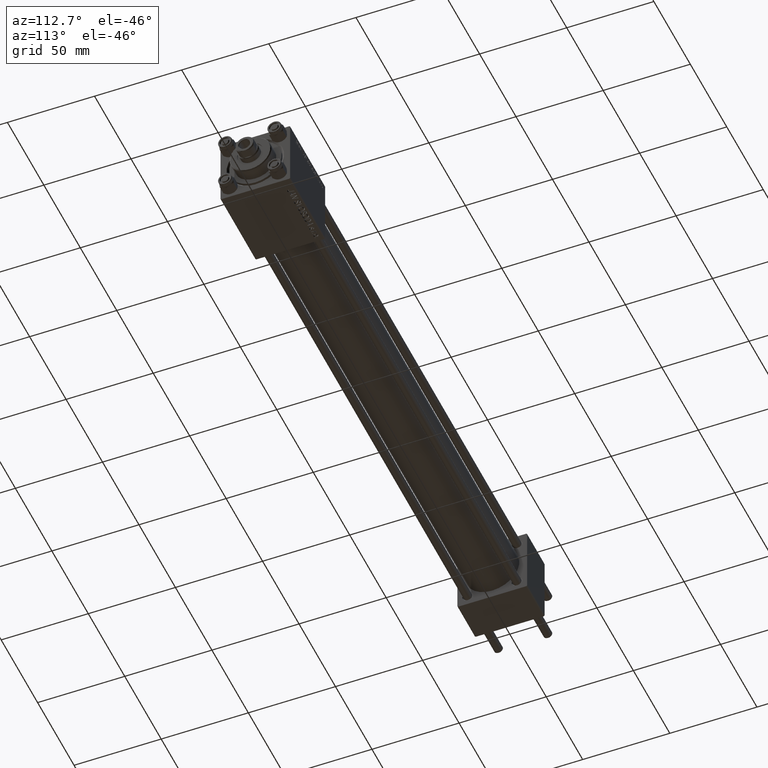
[diagram: clean part render]
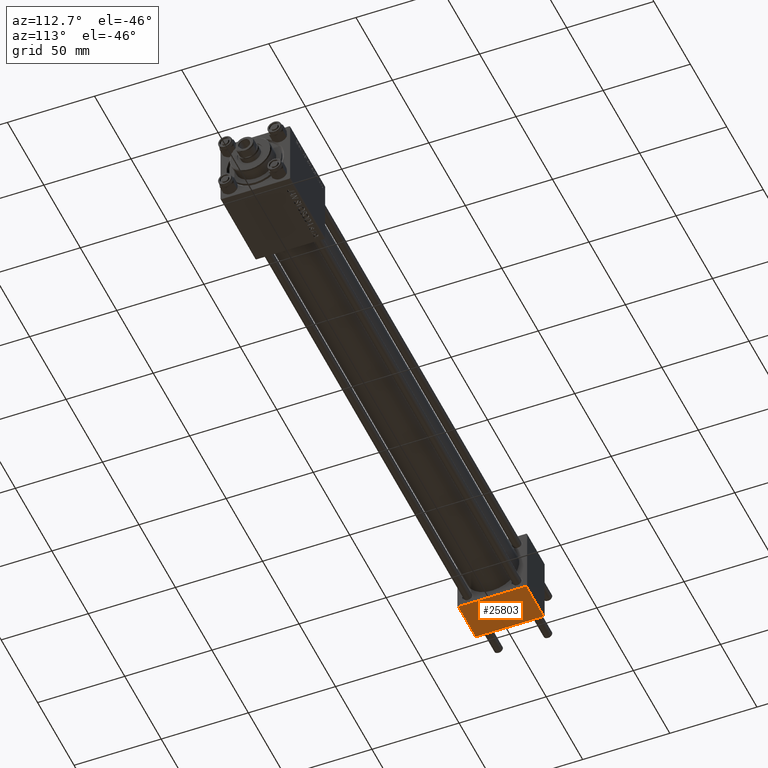
[diagram: same view with one face highlighted and labeled with its STEP entity id]
A machine part, auxiliary view. The second image highlights one B-rep face of the part: STEP entity #25803.
In plain terms, the highlighted planar face has unit normal (0, -0, -1).
Its self-contained STEP definition (entity closure, byte-faithful):
#2676 = DIRECTION ( 'NONE',  ( 0.000000000000000000, -1.000000000000000000, 1.734723475976807094E-16 ) ) ;
#5866 = CARTESIAN_POINT ( 'NONE',  ( 24.00000000000000000, 19.50000000000000711, -20.00000000000000711 ) ) ;
#8103 = VERTEX_POINT ( 'NONE', #43336 ) ;
#9115 = VERTEX_POINT ( 'NONE', #13305 ) ;
#10209 = VECTOR ( 'NONE', #10510, 1000.000000000000000 ) ;
#10510 = DIRECTION ( 'NONE',  ( 0.000000000000000000, -1.000000000000000000, 1.734723475976807094E-16 ) ) ;
#10715 = CARTESIAN_POINT ( 'NONE',  ( 24.00000000000000000, 20.00000000000000000, -20.00000000000000711 ) ) ;
#13252 = VECTOR ( 'NONE', #2676, 1000.000000000000000 ) ;
#13305 = CARTESIAN_POINT ( 'NONE',  ( 0.000000000000000000, -19.50000000000000711, -20.00000000000000000 ) ) ;
#16426 = CARTESIAN_POINT ( 'NONE',  ( 24.00000000000000000, -19.50000000000000711, -20.00000000000000000 ) ) ;
#18553 = ORIENTED_EDGE ( 'NONE', *, *, #39109, .T. ) ;
#19278 = CARTESIAN_POINT ( 'NONE',  ( 0.000000000000000000, -19.50000000000000711, -20.00000000000000000 ) ) ;
#19792 = VECTOR ( 'NONE', #27301, 1000.000000000000000 ) ;
#20249 = LINE ( 'NONE', #19278, #19792 ) ;
#21626 = LINE ( 'NONE', #29403, #10209 ) ;
#21813 = ORIENTED_EDGE ( 'NONE', *, *, #36999, .T. ) ;
#22233 = CARTESIAN_POINT ( 'NONE',  ( 24.00000000000000000, 20.00000000000000000, -20.00000000000000711 ) ) ;
#25203 = LINE ( 'NONE', #48359, #37446 ) ;
#25803 = ADVANCED_FACE ( 'NONE', ( #44367 ), #44608, .T. ) ;
#27301 = DIRECTION ( 'NONE',  ( -1.000000000000000000, 0.000000000000000000, 0.000000000000000000 ) ) ;
#27577 = EDGE_CURVE ( 'NONE', #8103, #40278, #25203, .T. ) ;
#29403 = CARTESIAN_POINT ( 'NONE',  ( 0.000000000000000000, 20.00000000000000000, -20.00000000000000711 ) ) ;
#29568 = EDGE_LOOP ( 'NONE', ( #33886, #35087, #21813, #18553 ) ) ;
#33886 = ORIENTED_EDGE ( 'NONE', *, *, #47431, .F. ) ;
#35087 = ORIENTED_EDGE ( 'NONE', *, *, #27577, .T. ) ;
#36999 = EDGE_CURVE ( 'NONE', #40278, #41409, #44712, .T. ) ;
#37446 = VECTOR ( 'NONE', #44564, 1000.000000000000000 ) ;
#39109 = EDGE_CURVE ( 'NONE', #41409, #9115, #20249, .T. ) ;
#40278 = VERTEX_POINT ( 'NONE', #5866 ) ;
#41084 = DIRECTION ( 'NONE',  ( 0.000000000000000000, -1.734723475976806848E-16, -1.000000000000000000 ) ) ;
#41409 = VERTEX_POINT ( 'NONE', #16426 ) ;
#41602 = DIRECTION ( 'NONE',  ( 0.000000000000000000, 1.000000000000000000, -1.734723475976806848E-16 ) ) ;
#43336 = CARTESIAN_POINT ( 'NONE',  ( 0.000000000000000000, 19.50000000000000711, -20.00000000000000711 ) ) ;
#44367 = FACE_OUTER_BOUND ( 'NONE', #29568, .T. ) ;
#44564 = DIRECTION ( 'NONE',  ( 1.000000000000000000, 0.000000000000000000, 0.000000000000000000 ) ) ;
#44608 = PLANE ( 'NONE',  #47828 ) ;
#44712 = LINE ( 'NONE', #10715, #13252 ) ;
#47431 = EDGE_CURVE ( 'NONE', #8103, #9115, #21626, .T. ) ;
#47828 = AXIS2_PLACEMENT_3D ( 'NONE', #22233, #41084, #41602 ) ;
#48359 = CARTESIAN_POINT ( 'NONE',  ( 24.00000000000000000, 19.50000000000000711, -20.00000000000000711 ) ) ;